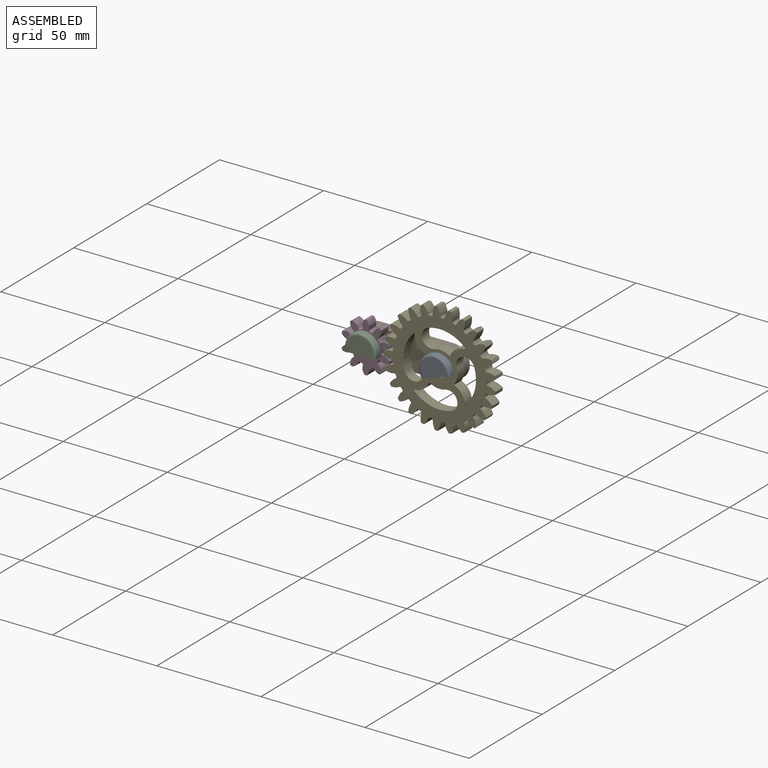
[diagram: assembled view]
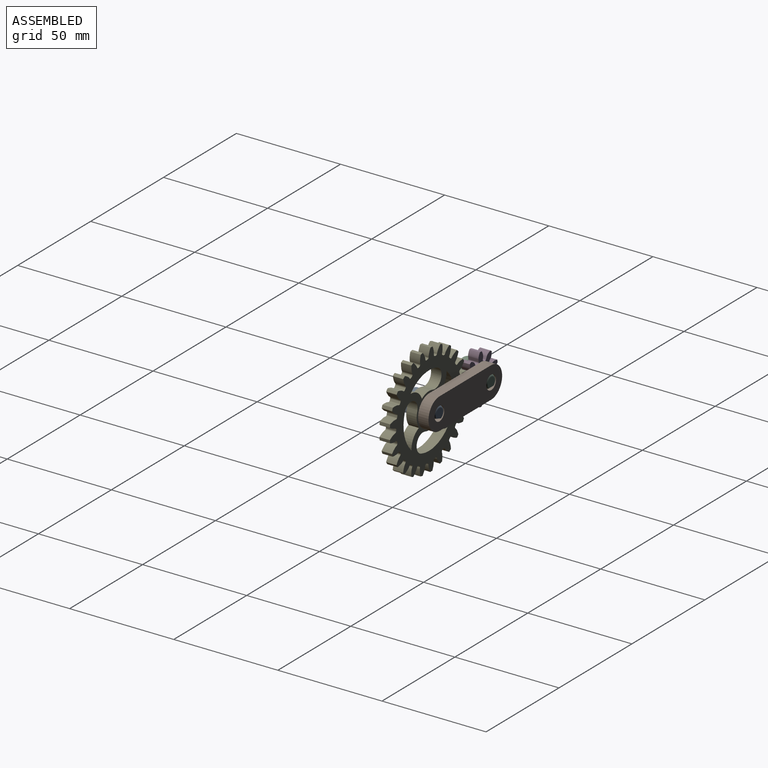
[diagram: assembled view, second angle]
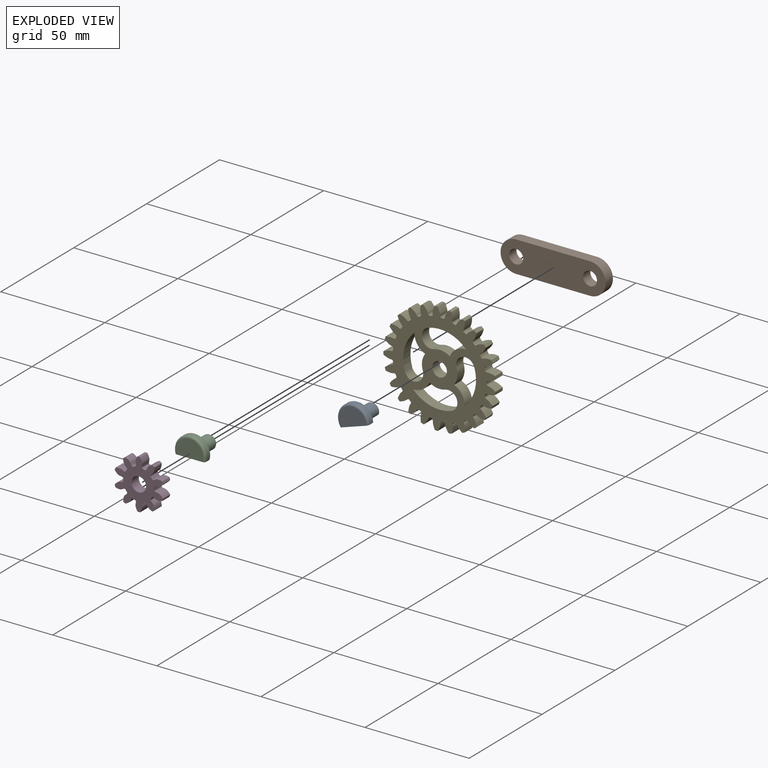
[diagram: exploded view]
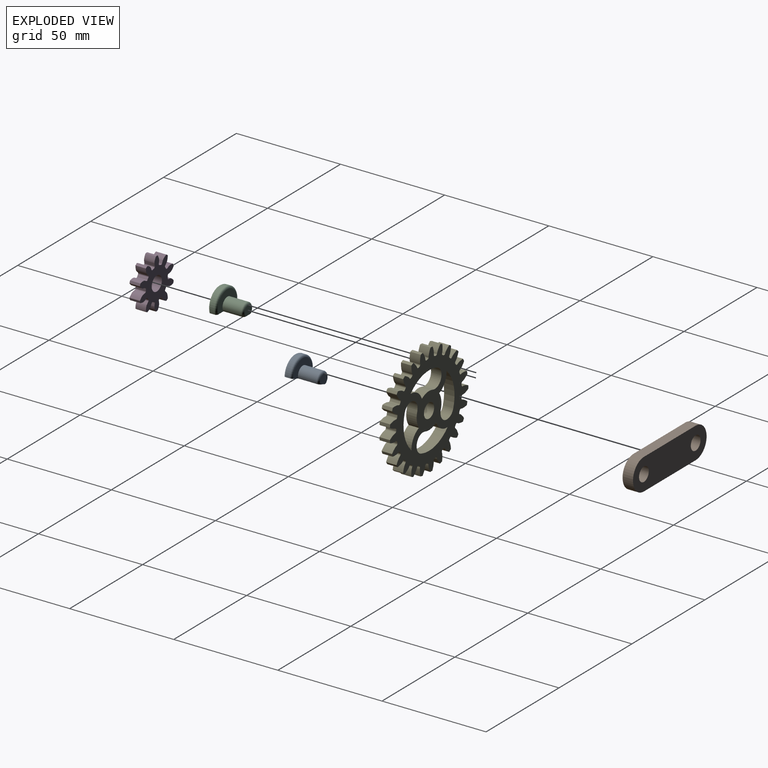
[diagram: exploded view, second angle]
ASSEMBLY  parts=5 mates=4
PART A: 9 faces, bbox 14x16.2x11.2 mm
  f0: plane 13x8.5mm, normal (-1,0,0), area 91.9mm2, adj f5,f8
  f1: plane 4.7x4.35mm, normal (1,0,0), area 16.8mm2, adj f5,f6
  f2: cylinder r=3.35mm len=9mm, axis (-1,0,0), area 133.3mm2, adj f3,f5,f6
  f3: plane 13x8.5mm, normal (1,0,0), area 61.8mm2, adj f2,f5,f7
  f4: cylinder r=7.5mm len=15mm, axis (-1,0,0), area 55.2mm2, adj f5,f7,f8
  f5: plane 14.46x14mm, normal (0,0,-1), area 110.1mm2, adj f0,f1,f2,f3,f4,f6,f7,f8
  f6: torus R=2.35mm, axis (1,0,0), area 21.7mm2, adj f1,f2,f5
  f7: torus R=6.5mm, axis (-1,0,0), area 41.6mm2, adj f3,f4,f5
  f8: torus R=6.5mm, axis (-1,0,0), area 41.6mm2, adj f0,f4,f5
PART B: 8 faces, bbox 50.5x5x15 mm
  f0: plane 35.5x5mm, normal (0,0,-1), area 177.5mm2, adj f1,f5,f6,f7
  f1: cylinder r=7.5mm len=15mm, axis (0,1,0), area 117.8mm2, adj f0,f2,f6,f7
  f2: plane 35.5x5mm, normal (0,0,1), area 177.5mm2, adj f1,f5,f6,f7
  f3: cylinder r=3.35mm len=6.7mm, axis (0,1,0), area 105.2mm2, adj f6,f7
  f4: cylinder r=3.35mm len=6.7mm, axis (0,1,0), area 105.2mm2, adj f6,f7
  f5: cylinder r=7.5mm len=15mm, axis (0,1,0), area 117.8mm2, adj f0,f2,f6,f7
  f6: plane 50.5x15mm, normal (0,-1,0), area 638.7mm2, adj f0,f1,f2,f3,f4,f5
  f7: plane 50.5x15mm, normal (0,1,0), area 638.7mm2, adj f0,f1,f2,f3,f4,f5
PART C: same geometry as A
PART D: 63 faces, bbox 23.2x5x24 mm
  f0: cylinder r=12mm len=5mm, axis (0,1,0), area 5.9mm2, adj f9,f12,f53,f60
  f1: cylinder r=12mm len=5mm, axis (0,1,0), area 5.9mm2, adj f9,f12,f13,f55
  f2: cylinder r=12mm len=5mm, axis (0,1,0), area 5.9mm2, adj f9,f12,f43,f50
  f3: cylinder r=12mm len=5mm, axis (0,1,0), area 5.9mm2, adj f9,f12,f45,f58
  f4: cylinder r=12mm len=5mm, axis (0,1,0), area 5.9mm2, adj f9,f12,f33,f40
  f5: cylinder r=12mm len=5mm, axis (0,1,0), area 5.9mm2, adj f9,f12,f28,f35
  f6: cylinder r=12mm len=5mm, axis (0,1,0), area 5.9mm2, adj f9,f12,f23,f30
  f7: cylinder r=12mm len=5mm, axis (0,1,0), area 5.9mm2, adj f9,f12,f25,f48
  f8: cylinder r=12mm len=5mm, axis (0,1,0), area 5.9mm2, adj f9,f12,f20,f38
  f9: plane 24.04x23.21mm, normal (0,-1,0), area 260.9mm2, adj f0,f1,f2,f3,f4,f5,f6,f7
  f10: cylinder r=3.5mm len=7mm, axis (0,1,0), area 110mm2, adj f9,f12
  f11: cylinder r=12mm len=5mm, axis (0,1,0), area 5.9mm2, adj f9,f12,f15,f18
  f12: plane 24.04x23.21mm, normal (0,1,0), area 260.9mm2, adj f0,f1,f2,f3,f4,f5,f6,f7
  f13: extruded ~5x3.57mm, area 21mm2, adj f1,f9,f12,f16
  f14: cylinder r=7.5mm len=5mm, axis (0,1,0), area 4.9mm2, adj f9,f12,f16,f17
  f15: extruded ~5x3.57mm, area 21mm2, adj f9,f11,f12,f17
  f16: cylinder r=0.62mm len=5mm, axis (0,1,0), area 4.6mm2, adj f9,f12,f13,f14
  f17: cylinder r=0.62mm len=5mm, axis (0,1,0), area 4.6mm2, adj f9,f12,f14,f15
  f18: extruded ~5x4.06mm, area 21mm2, adj f9,f11,f12,f21
  f19: cylinder r=7.5mm len=5mm, axis (0,1,0), area 4.9mm2, adj f9,f12,f21,f22
  f20: extruded ~5x3.71mm, area 21mm2, adj f8,f9,f12,f22
  f21: cylinder r=0.62mm len=5mm, axis (0,1,0), area 4.6mm2, adj f9,f12,f18,f19
  f22: cylinder r=0.62mm len=5mm, axis (0,1,0), area 4.6mm2, adj f9,f12,f19,f20
  f23: extruded ~5x3.57mm, area 21mm2, adj f6,f9,f12,f26
  f24: cylinder r=7.5mm len=5mm, axis (0,1,0), area 4.9mm2, adj f9,f12,f26,f27
  f25: extruded ~5x3.57mm, area 21mm2, adj f7,f9,f12,f27
  f26: cylinder r=0.62mm len=5mm, axis (0,1,0), area 4.6mm2, adj f9,f12,f23,f24
  f27: cylinder r=0.62mm len=5mm, axis (0,1,0), area 4.6mm2, adj f9,f12,f24,f25
  f28: extruded ~5x3.71mm, area 21mm2, adj f5,f9,f12,f31
  f29: cylinder r=7.5mm len=5mm, axis (0,1,0), area 4.9mm2, adj f9,f12,f31,f32
  f30: extruded ~5x4.06mm, area 21mm2, adj f6,f9,f12,f32
  f31: cylinder r=0.62mm len=5mm, axis (0,1,0), area 4.6mm2, adj f9,f12,f28,f29
  f32: cylinder r=0.62mm len=5mm, axis (0,1,0), area 4.6mm2, adj f9,f12,f29,f30
  f33: extruded ~5x4.01mm, area 21mm2, adj f4,f9,f12,f36
  f34: cylinder r=7.5mm len=5mm, axis (0,1,0), area 4.9mm2, adj f9,f12,f36,f37
  f35: extruded ~5x3mm, area 21mm2, adj f5,f9,f12,f37
  f36: cylinder r=0.62mm len=5mm, axis (0,1,0), area 4.6mm2, adj f9,f12,f33,f34
  f37: cylinder r=0.62mm len=5mm, axis (0,1,0), area 4.6mm2, adj f9,f12,f34,f35
  f38: extruded ~5x3mm, area 21mm2, adj f8,f9,f12,f41
  f39: cylinder r=7.5mm len=5mm, axis (0,1,0), area 4.9mm2, adj f9,f12,f41,f42
  f40: extruded ~5x4.01mm, area 21mm2, adj f4,f9,f12,f42
  f41: cylinder r=0.62mm len=5mm, axis (0,1,0), area 4.6mm2, adj f9,f12,f38,f39
  f42: cylinder r=0.62mm len=5mm, axis (0,1,0), area 4.6mm2, adj f9,f12,f39,f40
  f43: extruded ~5x3mm, area 21mm2, adj f2,f9,f12,f46
  f44: cylinder r=7.5mm len=5mm, axis (0,1,0), area 4.9mm2, adj f9,f12,f46,f47
  f45: extruded ~5x4.01mm, area 21mm2, adj f3,f9,f12,f47
  f46: cylinder r=0.62mm len=5mm, axis (0,1,0), area 4.6mm2, adj f9,f12,f43,f44
  f47: cylinder r=0.62mm len=5mm, axis (0,1,0), area 4.6mm2, adj f9,f12,f44,f45
  f48: extruded ~5x4.06mm, area 21mm2, adj f7,f9,f12,f51
  f49: cylinder r=7.5mm len=5mm, axis (0,1,0), area 4.9mm2, adj f9,f12,f51,f52
  f50: extruded ~5x3.71mm, area 21mm2, adj f2,f9,f12,f52
  f51: cylinder r=0.62mm len=5mm, axis (0,1,0), area 4.6mm2, adj f9,f12,f48,f49
  f52: cylinder r=0.62mm len=5mm, axis (0,1,0), area 4.6mm2, adj f9,f12,f49,f50
  f53: extruded ~5x3.71mm, area 21mm2, adj f0,f9,f12,f56
  f54: cylinder r=7.5mm len=5mm, axis (0,1,0), area 4.9mm2, adj f9,f12,f56,f57
  f55: extruded ~5x4.06mm, area 21mm2, adj f1,f9,f12,f57
  f56: cylinder r=0.62mm len=5mm, axis (0,1,0), area 4.6mm2, adj f9,f12,f53,f54
  f57: cylinder r=0.62mm len=5mm, axis (0,1,0), area 4.6mm2, adj f9,f12,f54,f55
  f58: extruded ~5x4.01mm, area 21mm2, adj f3,f9,f12,f61
  f59: cylinder r=7.5mm len=5mm, axis (0,1,0), area 4.9mm2, adj f9,f12,f61,f62
  f60: extruded ~5x3mm, area 21mm2, adj f0,f9,f12,f62
  f61: cylinder r=0.62mm len=5mm, axis (0,1,0), area 4.6mm2, adj f9,f12,f58,f59
  f62: cylinder r=0.62mm len=5mm, axis (0,1,0), area 4.6mm2, adj f9,f12,f59,f60
PART E: 169 faces, bbox 53.9x5x54 mm
  f0: plane 53.98x53.88mm, normal (0,-1,0), area 1308.3mm2, adj f2,f3,f4,f5,f6,f7,f8,f9
  f1: plane 53.98x53.88mm, normal (0,1,0), area 1308.3mm2, adj f2,f3,f4,f5,f6,f7,f8,f9
  f2: cylinder r=27mm len=5mm, axis (0,1,0), area 7.2mm2, adj f0,f1,f138,f150
  f3: cylinder r=27mm len=5mm, axis (0,1,0), area 7.2mm2, adj f0,f1,f145,f148
  f4: cylinder r=27mm len=5mm, axis (0,1,0), area 7.2mm2, adj f0,f1,f133,f140
  f5: cylinder r=27mm len=5mm, axis (0,1,0), area 7.2mm2, adj f0,f1,f128,f135
  f6: cylinder r=27mm len=5mm, axis (0,1,0), area 7.2mm2, adj f0,f1,f123,f130
  f7: cylinder r=27mm len=5mm, axis (0,1,0), area 7.2mm2, adj f0,f1,f113,f125
  f8: cylinder r=27mm len=5mm, axis (0,1,0), area 7.2mm2, adj f0,f1,f108,f120
  f9: cylinder r=27mm len=5mm, axis (0,1,0), area 7.2mm2, adj f0,f1,f115,f118
  f10: cylinder r=27mm len=5mm, axis (0,1,0), area 7.2mm2, adj f0,f1,f103,f110
  f11: cylinder r=27mm len=5mm, axis (0,1,0), area 7.2mm2, adj f0,f1,f98,f105
  f12: cylinder r=27mm len=5mm, axis (0,1,0), area 7.2mm2, adj f0,f1,f93,f100
  f13: cylinder r=27mm len=5mm, axis (0,1,0), area 7.2mm2, adj f0,f1,f78,f95
  f14: cylinder r=27mm len=5mm, axis (0,1,0), area 7.2mm2, adj f0,f1,f28,f90
  f15: cylinder r=27mm len=5mm, axis (0,1,0), area 7.2mm2, adj f0,f1,f85,f88
  f16: cylinder r=27mm len=5mm, axis (0,1,0), area 7.2mm2, adj f0,f1,f73,f80
  f17: cylinder r=27mm len=5mm, axis (0,1,0), area 7.2mm2, adj f0,f1,f75,f83
  f18: cylinder r=27mm len=5mm, axis (0,1,0), area 7.2mm2, adj f0,f1,f70,f143
  f19: cylinder r=27mm len=5mm, axis (0,1,0), area 7.2mm2, adj f0,f1,f65,f68
  f20: cylinder r=27mm len=5mm, axis (0,1,0), area 7.2mm2, adj f0,f1,f60,f63
  f21: cylinder r=27mm len=5mm, axis (0,1,0), area 7.2mm2, adj f0,f1,f55,f58
  f22: cylinder r=27mm len=5mm, axis (0,1,0), area 7.2mm2, adj f0,f1,f43,f50
  f23: cylinder r=27mm len=5mm, axis (0,1,0), area 7.2mm2, adj f0,f1,f33,f45
  f24: cylinder r=27mm len=5mm, axis (0,1,0), area 7.2mm2, adj f0,f1,f40,f53
  f25: cylinder r=27mm len=5mm, axis (0,1,0), area 7.2mm2, adj f0,f1,f35,f38
  f26: cylinder r=3.5mm len=7mm, axis (0,1,0), area 110mm2, adj f0,f1
  f27: cylinder r=27mm len=5mm, axis (0,1,0), area 7.2mm2, adj f0,f1,f30,f48
  f28: extruded ~5x3.65mm, area 20.1mm2, adj f0,f1,f14,f31
  f29: cylinder r=22.5mm len=5mm, axis (0,1,0), area 3.4mm2, adj f0,f1,f31,f32
  f30: extruded ~5x3.65mm, area 20.1mm2, adj f0,f1,f27,f32
  f31: cylinder r=0.76mm len=5mm, axis (0,1,0), area 5.8mm2, adj f0,f1,f28,f29
  f32: cylinder r=0.76mm len=5mm, axis (0,1,0), area 5.8mm2, adj f0,f1,f29,f30
  f33: extruded ~5x3.73mm, area 20.1mm2, adj f0,f1,f23,f36
  f34: cylinder r=22.5mm len=5mm, axis (0,1,0), area 3.4mm2, adj f0,f1,f36,f37
  f35: extruded ~5x3.63mm, area 20.1mm2, adj f0,f1,f25,f37
  f36: cylinder r=0.76mm len=5mm, axis (0,1,0), area 5.8mm2, adj f0,f1,f33,f34
  f37: cylinder r=0.76mm len=5mm, axis (0,1,0), area 5.8mm2, adj f0,f1,f34,f35
  f38: extruded ~5x3.27mm, area 20.1mm2, adj f0,f1,f25,f41
  f39: cylinder r=22.5mm len=5mm, axis (0,1,0), area 3.4mm2, adj f0,f1,f41,f42
  f40: extruded ~5x3.91mm, area 20.1mm2, adj f0,f1,f24,f42
  f41: cylinder r=0.76mm len=5mm, axis (0,1,0), area 5.8mm2, adj f0,f1,f38,f39
  f42: cylinder r=0.76mm len=5mm, axis (0,1,0), area 5.8mm2, adj f0,f1,f39,f40
  f43: extruded ~5x3.95mm, area 20.1mm2, adj f0,f1,f22,f46
  f44: cylinder r=22.5mm len=5mm, axis (0,1,0), area 3.4mm2, adj f0,f1,f46,f47
  f45: extruded ~5x3.12mm, area 20.1mm2, adj f0,f1,f23,f47
  f46: cylinder r=0.76mm len=5mm, axis (0,1,0), area 5.8mm2, adj f0,f1,f43,f44
  f47: cylinder r=0.76mm len=5mm, axis (0,1,0), area 5.8mm2, adj f0,f1,f44,f45
  f48: extruded ~5x3.92mm, area 20.1mm2, adj f0,f1,f27,f51
  f49: cylinder r=22.5mm len=5mm, axis (0,1,0), area 3.4mm2, adj f0,f1,f51,f52
  f50: extruded ~5x3.15mm, area 20.1mm2, adj f0,f1,f22,f52
  f51: cylinder r=0.76mm len=5mm, axis (0,1,0), area 5.8mm2, adj f0,f1,f48,f49
  f52: cylinder r=0.76mm len=5mm, axis (0,1,0), area 5.8mm2, adj f0,f1,f49,f50
  f53: extruded ~5x2.99mm, area 20.1mm2, adj f0,f1,f24,f56
  f54: cylinder r=22.5mm len=5mm, axis (0,1,0), area 3.4mm2, adj f0,f1,f56,f57
  f55: extruded ~5x3.95mm, area 20.1mm2, adj f0,f1,f21,f57
  f56: cylinder r=0.76mm len=5mm, axis (0,1,0), area 5.8mm2, adj f0,f1,f53,f54
  f57: cylinder r=0.76mm len=5mm, axis (0,1,0), area 5.8mm2, adj f0,f1,f54,f55
  f58: extruded ~5x3.54mm, area 20.1mm2, adj f0,f1,f21,f61
  f59: cylinder r=22.5mm len=5mm, axis (0,1,0), area 3.4mm2, adj f0,f1,f61,f62
  f60: extruded ~5x3.74mm, area 20.1mm2, adj f0,f1,f20,f62
  f61: cylinder r=0.76mm len=5mm, axis (0,1,0), area 5.8mm2, adj f0,f1,f58,f59
  f62: cylinder r=0.76mm len=5mm, axis (0,1,0), area 5.8mm2, adj f0,f1,f59,f60
  f63: extruded ~5x3.88mm, area 20.1mm2, adj f0,f1,f20,f66
  f64: cylinder r=22.5mm len=5mm, axis (0,1,0), area 3.4mm2, adj f0,f1,f66,f67
  f65: extruded ~5x3.29mm, area 20.1mm2, adj f0,f1,f19,f67
  f66: cylinder r=0.76mm len=5mm, axis (0,1,0), area 5.8mm2, adj f0,f1,f63,f64
  f67: cylinder r=0.76mm len=5mm, axis (0,1,0), area 5.8mm2, adj f0,f1,f64,f65
  f68: extruded ~5x3.96mm, area 20.1mm2, adj f0,f1,f19,f71
  f69: cylinder r=22.5mm len=5mm, axis (0,1,0), area 3.4mm2, adj f0,f1,f71,f72
  f70: extruded ~5x2.96mm, area 20.1mm2, adj f0,f1,f18,f72
  f71: cylinder r=0.76mm len=5mm, axis (0,1,0), area 5.8mm2, adj f0,f1,f68,f69
  f72: cylinder r=0.76mm len=5mm, axis (0,1,0), area 5.8mm2, adj f0,f1,f69,f70
  f73: extruded ~5x3.63mm, area 20.1mm2, adj f0,f1,f16,f76
  f74: cylinder r=22.5mm len=5mm, axis (0,1,0), area 3.4mm2, adj f0,f1,f76,f77
  f75: extruded ~5x3.73mm, area 20.1mm2, adj f0,f1,f17,f77
  f76: cylinder r=0.76mm len=5mm, axis (0,1,0), area 5.8mm2, adj f0,f1,f73,f74
  f77: cylinder r=0.76mm len=5mm, axis (0,1,0), area 5.8mm2, adj f0,f1,f74,f75
  f78: extruded ~5x3.91mm, area 20.1mm2, adj f0,f1,f13,f81
  f79: cylinder r=22.5mm len=5mm, axis (0,1,0), area 3.4mm2, adj f0,f1,f81,f82
  f80: extruded ~5x3.27mm, area 20.1mm2, adj f0,f1,f16,f82
  f81: cylinder r=0.76mm len=5mm, axis (0,1,0), area 5.8mm2, adj f0,f1,f78,f79
  f82: cylinder r=0.76mm len=5mm, axis (0,1,0), area 5.8mm2, adj f0,f1,f79,f80
  f83: extruded ~5x3.12mm, area 20.1mm2, adj f0,f1,f17,f86
  f84: cylinder r=22.5mm len=5mm, axis (0,1,0), area 3.4mm2, adj f0,f1,f86,f87
  f85: extruded ~5x3.95mm, area 20.1mm2, adj f0,f1,f15,f87
  f86: cylinder r=0.76mm len=5mm, axis (0,1,0), area 5.8mm2, adj f0,f1,f83,f84
  f87: cylinder r=0.76mm len=5mm, axis (0,1,0), area 5.8mm2, adj f0,f1,f84,f85
  f88: extruded ~5x3.15mm, area 20.1mm2, adj f0,f1,f15,f91
  f89: cylinder r=22.5mm len=5mm, axis (0,1,0), area 3.4mm2, adj f0,f1,f91,f92
  f90: extruded ~5x3.92mm, area 20.1mm2, adj f0,f1,f14,f92
  f91: cylinder r=0.76mm len=5mm, axis (0,1,0), area 5.8mm2, adj f0,f1,f88,f89
  f92: cylinder r=0.76mm len=5mm, axis (0,1,0), area 5.8mm2, adj f0,f1,f89,f90
  f93: extruded ~5x3.95mm, area 20.1mm2, adj f0,f1,f12,f96
  f94: cylinder r=22.5mm len=5mm, axis (0,1,0), area 3.4mm2, adj f0,f1,f96,f97
  f95: extruded ~5x2.99mm, area 20.1mm2, adj f0,f1,f13,f97
  f96: cylinder r=0.76mm len=5mm, axis (0,1,0), area 5.8mm2, adj f0,f1,f93,f94
  f97: cylinder r=0.76mm len=5mm, axis (0,1,0), area 5.8mm2, adj f0,f1,f94,f95
  f98: extruded ~5x3.74mm, area 20.1mm2, adj f0,f1,f11,f101
  f99: cylinder r=22.5mm len=5mm, axis (0,1,0), area 3.4mm2, adj f0,f1,f101,f102
  f100: extruded ~5x3.54mm, area 20.1mm2, adj f0,f1,f12,f102
  f101: cylinder r=0.76mm len=5mm, axis (0,1,0), area 5.8mm2, adj f0,f1,f98,f99
  f102: cylinder r=0.76mm len=5mm, axis (0,1,0), area 5.8mm2, adj f0,f1,f99,f100
  f103: extruded ~5x3.29mm, area 20.1mm2, adj f0,f1,f10,f106
  f104: cylinder r=22.5mm len=5mm, axis (0,1,0), area 3.4mm2, adj f0,f1,f106,f107
  f105: extruded ~5x3.88mm, area 20.1mm2, adj f0,f1,f11,f107
  f106: cylinder r=0.76mm len=5mm, axis (0,1,0), area 5.8mm2, adj f0,f1,f103,f104
  f107: cylinder r=0.76mm len=5mm, axis (0,1,0), area 5.8mm2, adj f0,f1,f104,f105
  f108: extruded ~5x2.96mm, area 20.1mm2, adj f0,f1,f8,f111
  f109: cylinder r=22.5mm len=5mm, axis (0,1,0), area 3.4mm2, adj f0,f1,f111,f112
  f110: extruded ~5x3.96mm, area 20.1mm2, adj f0,f1,f10,f112
  f111: cylinder r=0.76mm len=5mm, axis (0,1,0), area 5.8mm2, adj f0,f1,f108,f109
  f112: cylinder r=0.76mm len=5mm, axis (0,1,0), area 5.8mm2, adj f0,f1,f109,f110
  f113: extruded ~5x3.87mm, area 20.1mm2, adj f0,f1,f7,f116
  f114: cylinder r=22.5mm len=5mm, axis (0,1,0), area 3.4mm2, adj f0,f1,f116,f117
  f115: extruded ~5x3.4mm, area 20.1mm2, adj f0,f1,f9,f117
  f116: cylinder r=0.76mm len=5mm, axis (0,1,0), area 5.8mm2, adj f0,f1,f113,f114
  f117: cylinder r=0.76mm len=5mm, axis (0,1,0), area 5.8mm2, adj f0,f1,f114,f115
  f118: extruded ~5x3.53mm, area 20.1mm2, adj f0,f1,f9,f121
  f119: cylinder r=22.5mm len=5mm, axis (0,1,0), area 3.4mm2, adj f0,f1,f121,f122
  f120: extruded ~5x3.8mm, area 20.1mm2, adj f0,f1,f8,f122
  f121: cylinder r=0.76mm len=5mm, axis (0,1,0), area 5.8mm2, adj f0,f1,f118,f119
  f122: cylinder r=0.76mm len=5mm, axis (0,1,0), area 5.8mm2, adj f0,f1,f119,f120
  f123: extruded ~5x3.97mm, area 20.1mm2, adj f0,f1,f6,f126
  f124: cylinder r=22.5mm len=5mm, axis (0,1,0), area 3.4mm2, adj f0,f1,f126,f127
  f125: extruded ~5x2.82mm, area 20.1mm2, adj f0,f1,f7,f127
  f126: cylinder r=0.76mm len=5mm, axis (0,1,0), area 5.8mm2, adj f0,f1,f123,f124
  f127: cylinder r=0.76mm len=5mm, axis (0,1,0), area 5.8mm2, adj f0,f1,f124,f125
  f128: extruded ~5x3.82mm, area 20.1mm2, adj f0,f1,f5,f131
  f129: cylinder r=22.5mm len=5mm, axis (0,1,0), area 3.4mm2, adj f0,f1,f131,f132
  f130: extruded ~5x3.43mm, area 20.1mm2, adj f0,f1,f6,f132
  f131: cylinder r=0.76mm len=5mm, axis (0,1,0), area 5.8mm2, adj f0,f1,f128,f129
  f132: cylinder r=0.76mm len=5mm, axis (0,1,0), area 5.8mm2, adj f0,f1,f129,f130
  f133: extruded ~5x3.43mm, area 20.1mm2, adj f0,f1,f4,f136
  f134: cylinder r=22.5mm len=5mm, axis (0,1,0), area 3.4mm2, adj f0,f1,f136,f137
  f135: extruded ~5x3.82mm, area 20.1mm2, adj f0,f1,f5,f137
  f136: cylinder r=0.76mm len=5mm, axis (0,1,0), area 5.8mm2, adj f0,f1,f133,f134
  f137: cylinder r=0.76mm len=5mm, axis (0,1,0), area 5.8mm2, adj f0,f1,f134,f135
  f138: extruded ~5x2.82mm, area 20.1mm2, adj f0,f1,f2,f141
  f139: cylinder r=22.5mm len=5mm, axis (0,1,0), area 3.4mm2, adj f0,f1,f141,f142
  f140: extruded ~5x3.97mm, area 20.1mm2, adj f0,f1,f4,f142
  f141: cylinder r=0.76mm len=5mm, axis (0,1,0), area 5.8mm2, adj f0,f1,f138,f139
  f142: cylinder r=0.76mm len=5mm, axis (0,1,0), area 5.8mm2, adj f0,f1,f139,f140
  f143: extruded ~5x3.8mm, area 20.1mm2, adj f0,f1,f18,f146
  f144: cylinder r=22.5mm len=5mm, axis (0,1,0), area 3.4mm2, adj f0,f1,f146,f147
  f145: extruded ~5x3.53mm, area 20.1mm2, adj f0,f1,f3,f147
  f146: cylinder r=0.76mm len=5mm, axis (0,1,0), area 5.8mm2, adj f0,f1,f143,f144
  f147: cylinder r=0.76mm len=5mm, axis (0,1,0), area 5.8mm2, adj f0,f1,f144,f145
  f148: extruded ~5x3.4mm, area 20.1mm2, adj f0,f1,f3,f151
  f149: cylinder r=22.5mm len=5mm, axis (0,1,0), area 3.4mm2, adj f0,f1,f151,f152
  f150: extruded ~5x3.87mm, area 20.1mm2, adj f0,f1,f2,f152
  f151: cylinder r=0.76mm len=5mm, axis (0,1,0), area 5.8mm2, adj f0,f1,f148,f149
  f152: cylinder r=0.76mm len=5mm, axis (0,1,0), area 5.8mm2, adj f0,f1,f149,f150
  f153: cylinder r=17.5mm len=15.82mm, axis (0,-1,0), area 98.8mm2, adj f0,f1,f154,f156
  f154: cylinder r=4.5mm len=9mm, axis (0,-1,0), area 70.7mm2, adj f0,f1,f153,f155
  f155: cylinder r=8.5mm len=6.82mm, axis (0,-1,0), area 39.6mm2, adj f0,f1,f154,f156
  f156: cylinder r=8mm len=9mm, axis (0,-1,0), area 49.7mm2, adj f0,f1,f153,f155
  f157: cylinder r=8mm len=9mm, axis (0,-1,0), area 49.7mm2, adj f0,f1,f158,f160
  f158: cylinder r=17.5mm len=15.82mm, axis (0,-1,0), area 98.8mm2, adj f0,f1,f157,f159
  f159: cylinder r=4.5mm len=9mm, axis (0,-1,0), area 70.7mm2, adj f0,f1,f158,f160
  f160: cylinder r=8.5mm len=6.82mm, axis (0,-1,0), area 39.6mm2, adj f0,f1,f157,f159
  f161: cylinder r=8mm len=9mm, axis (0,-1,0), area 49.7mm2, adj f0,f1,f162,f164
  f162: cylinder r=17.5mm len=15.82mm, axis (0,-1,0), area 98.8mm2, adj f0,f1,f161,f163
  f163: cylinder r=4.5mm len=9mm, axis (0,-1,0), area 70.7mm2, adj f0,f1,f162,f164
  f164: cylinder r=8.5mm len=6.82mm, axis (0,-1,0), area 39.6mm2, adj f0,f1,f161,f163
  f165: cylinder r=8.5mm len=6.82mm, axis (0,-1,0), area 39.6mm2, adj f0,f1,f166,f168
  f166: cylinder r=8mm len=9mm, axis (0,-1,0), area 49.7mm2, adj f0,f1,f165,f167
  f167: cylinder r=17.5mm len=15.82mm, axis (0,-1,0), area 98.8mm2, adj f0,f1,f166,f168
  f168: cylinder r=4.5mm len=9mm, axis (0,-1,0), area 70.7mm2, adj f0,f1,f165,f167
PLACE A rot(axis=(-0.16,-0.16,0.98),91.4deg) t=(17.75,-14,0)mm
PLACE B at identity fixed
PLACE C rot(axis=(0,0,1),90deg) t=(-17.75,-14,0)mm
PLACE D rot(axis=(0,1,0),0deg) t=(-17.75,-5,0)mm
PLACE E rot(axis=(0,1,0),71.8deg) t=(17.75,-5,0)mm
MATE fastened A.f2 <-> E.f167  axis (0,-1,0) through (17.75,-10,0)mm
MATE revolute B.f5 <-> D.f0  axis (0,-1,0) through (-17.75,-5,0)mm
MATE fastened C.f2 <-> D.f0  axis (0,1,0) through (-17.75,-10,0)mm
MATE revolute B.f4 <-> E.f2  axis (0,-1,0) through (17.75,-5,0)mm
